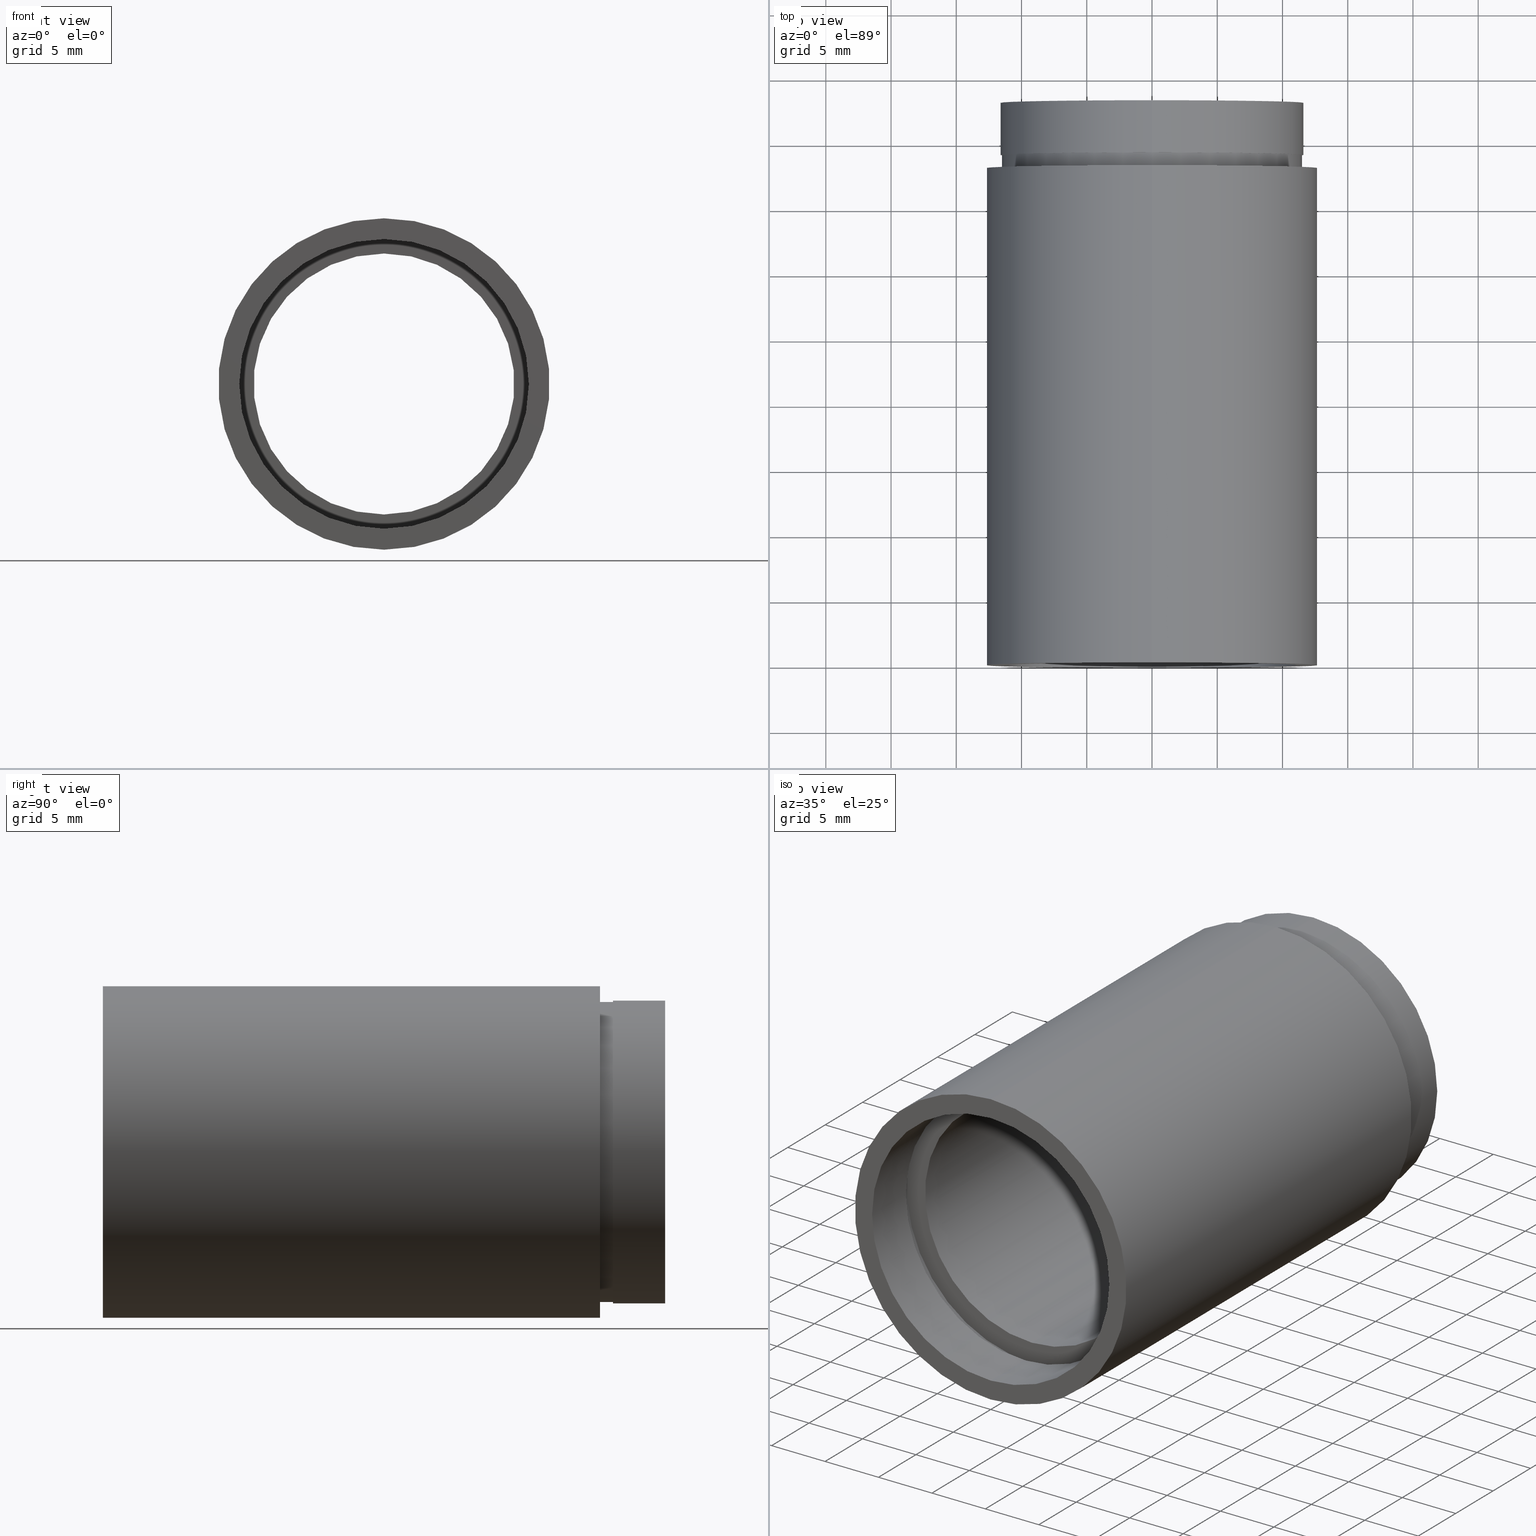
[diagram: canonical four-view strip — front | top / right | iso, engineering-drawing reading convention]
A machine part, canonical four-view strip (front | top / right | iso — engineering-drawing reading convention). The complete STEP part file that produces these views, byte-faithful:
ISO-10303-21;
HEADER;
FILE_DESCRIPTION (( 'STEP AP214' ),
    '1' );
FILE_NAME ('503057.STEP',
    '2019-09-09T01:53:00',
    ( '' ),
    ( '' ),
    'SwSTEP 2.0',
    'SolidWorks 2016',
    '' );
FILE_SCHEMA (( 'AUTOMOTIVE_DESIGN' ));
ENDSEC;

DATA;
#1 = FACE_OUTER_BOUND ( 'NONE', #345, .T. ) ;
#2 = VERTEX_POINT ( 'NONE', #413 ) ;
#3 = EDGE_CURVE ( 'NONE', #207, #395, #298, .T. ) ;
#4 = EDGE_LOOP ( 'NONE', ( #139, #241 ) ) ;
#5 = SURFACE_SIDE_STYLE ('',( #400 ) ) ;
#6 = FILL_AREA_STYLE ('',( #44 ) ) ;
#7 = VECTOR ( 'NONE', #422, 1000.000000000000000 ) ;
#8 = ORIENTED_EDGE ( 'NONE', *, *, #3, .F. ) ;
#9 = CARTESIAN_POINT ( 'NONE',  ( 0.0000000000000000000, 161.3761669434274500, 11.10000000000001700 ) ) ;
#10 = EDGE_CURVE ( 'NONE', #498, #480, #343, .T. ) ;
#11 = DIRECTION ( 'NONE',  ( -0.0000000000000000000, 1.000000000000000000, -0.0000000000000000000 ) ) ;
#12 = LINE ( 'NONE', #9, #136 ) ;
#13 = ADVANCED_FACE ( 'NONE', ( #506 ), #333, .F. ) ;
#14 = CARTESIAN_POINT ( 'NONE',  ( 0.0000000000000000000, 4.499999999999976000, 11.10000000000001700 ) ) ;
#15 = EDGE_LOOP ( 'NONE', ( #289, #540 ) ) ;
#16 = ORIENTED_EDGE ( 'NONE', *, *, #10, .T. ) ;
#17 = CARTESIAN_POINT ( 'NONE',  ( 0.0000000000000000000, 43.09999999999998700, 10.00000000000002000 ) ) ;
#18 = PRESENTATION_LAYER_ASSIGNMENT (  '', '', ( #76 ) ) ;
#19 = DIRECTION ( 'NONE',  ( 0.0000000000000000000, 0.0000000000000000000, 1.000000000000000000 ) ) ;
#20 = CARTESIAN_POINT ( 'NONE',  ( 0.0000000000000000000, -2.775557561562891400E-014, 0.0000000000000000000 ) ) ;
#21 = CARTESIAN_POINT ( 'NONE',  ( 0.0000000000000000000, 38.09999999999999400, 11.50000000000001600 ) ) ;
#22 = EDGE_CURVE ( 'NONE', #274, #267, #349, .T. ) ;
#23 = DIRECTION ( 'NONE',  ( 0.0000000000000000000, 0.0000000000000000000, 1.000000000000000000 ) ) ;
#24 = SHAPE_DEFINITION_REPRESENTATION ( #577, #414 ) ;
#25 = FILL_AREA_STYLE_COLOUR ( '', #184 ) ;
#26 = FACE_OUTER_BOUND ( 'NONE', #523, .T. ) ;
#27 = LINE ( 'NONE', #227, #7 ) ;
#28 = DIRECTION ( 'NONE',  ( -0.0000000000000000000, 1.000000000000000000, -0.0000000000000000000 ) ) ;
#29 = MECHANICAL_DESIGN_GEOMETRIC_PRESENTATION_REPRESENTATION (  '', ( #254 ), #89 ) ;
#30 =( NAMED_UNIT ( * ) PLANE_ANGLE_UNIT ( ) SI_UNIT ( $, .RADIAN. ) );
#31 = FACE_BOUND ( 'NONE', #517, .T. ) ;
#32 = EDGE_CURVE ( 'NONE', #186, #395, #579, .T. ) ;
#33 = DIRECTION ( 'NONE',  ( -0.0000000000000000000, 1.000000000000000000, -0.0000000000000000000 ) ) ;
#34 = ORIENTED_EDGE ( 'NONE', *, *, #399, .F. ) ;
#35 = ORIENTED_EDGE ( 'NONE', *, *, #582, .F. ) ;
#36 = PLANE ( 'NONE',  #195 ) ;
#37 = EDGE_CURVE ( 'NONE', #185, #299, #305, .T. ) ;
#38 = CARTESIAN_POINT ( 'NONE',  ( 0.0000000000000000000, -2.775557561562891400E-014, 11.10000000000001700 ) ) ;
#39 = DIRECTION ( 'NONE',  ( 0.0000000000000000000, 0.0000000000000000000, 1.000000000000000000 ) ) ;
#40 = FILL_AREA_STYLE ('',( #92 ) ) ;
#41 = PRESENTATION_STYLE_ASSIGNMENT (( #211 ) ) ;
#42 = EDGE_CURVE ( 'NONE', #274, #580, #325, .T. ) ;
#43 = ORIENTED_EDGE ( 'NONE', *, *, #304, .F. ) ;
#44 = FILL_AREA_STYLE_COLOUR ( '', #104 ) ;
#45 = EDGE_CURVE ( 'NONE', #433, #480, #272, .T. ) ;
#46 = UNCERTAINTY_MEASURE_WITH_UNIT (LENGTH_MEASURE( 1.000000000000000100E-005 ), #171, 'distance_accuracy_value', 'NONE');
#47 = VECTOR ( 'NONE', #213, 1000.000000000000000 ) ;
#48 = ORIENTED_EDGE ( 'NONE', *, *, #371, .T. ) ;
#49 = EDGE_LOOP ( 'NONE', ( #163, #147, #464, #623 ) ) ;
#50 = CARTESIAN_POINT ( 'NONE',  ( 0.0000000000000000000, -2.775557561562891400E-014, 0.0000000000000000000 ) ) ;
#51 = AXIS2_PLACEMENT_3D ( 'NONE', #275, #503, #456 ) ;
#52 = FACE_OUTER_BOUND ( 'NONE', #215, .T. ) ;
#53 = FACE_OUTER_BOUND ( 'NONE', #292, .T. ) ;
#54 = CARTESIAN_POINT ( 'NONE',  ( 0.0000000000000000000, 39.09999999999999400, 0.0000000000000000000 ) ) ;
#55 = EDGE_CURVE ( 'NONE', #580, #274, #453, .T. ) ;
#56 = ORIENTED_EDGE ( 'NONE', *, *, #105, .T. ) ;
#57 =( NAMED_UNIT ( * ) PLANE_ANGLE_UNIT ( ) SI_UNIT ( $, .RADIAN. ) );
#58 = CARTESIAN_POINT ( 'NONE',  ( 1.224646799147355400E-015, 161.3761669434274500, -10.00000000000002000 ) ) ;
#59 = AXIS2_PLACEMENT_3D ( 'NONE', #120, #310, #537 ) ;
#60 = PLANE ( 'NONE',  #336 ) ;
#61 = COLOUR_RGB ( '',1.000000000000000000, 1.000000000000000000, 1.000000000000000000 ) ;
#62 = EDGE_LOOP ( 'NONE', ( #455, #378 ) ) ;
#63 = ORIENTED_EDGE ( 'NONE', *, *, #42, .F. ) ;
#64 = AXIS2_PLACEMENT_3D ( 'NONE', #474, #189, #470 ) ;
#65 = ADVANCED_FACE ( 'NONE', ( #483 ), #613, .T. ) ;
#66 = EDGE_CURVE ( 'NONE', #185, #621, #198, .T. ) ;
#67 = ADVANCED_FACE ( 'NONE', ( #603 ), #174, .T. ) ;
#68 = FILL_AREA_STYLE ('',( #448 ) ) ;
#69 = DIRECTION ( 'NONE',  ( -0.0000000000000000000, 1.000000000000000000, -0.0000000000000000000 ) ) ;
#70 = CIRCLE ( 'NONE', #209, 11.10000000000001700 ) ;
#71 = SURFACE_STYLE_USAGE ( .BOTH. , #599 ) ;
#72 = CIRCLE ( 'NONE', #465, 11.70000000000001900 ) ;
#73 = EDGE_LOOP ( 'NONE', ( #63, #225, #56, #435 ) ) ;
#74 = EDGE_CURVE ( 'NONE', #164, #2, #472, .T. ) ;
#75 = DIRECTION ( 'NONE',  ( -0.0000000000000000000, 1.000000000000000000, 0.0000000000000000000 ) ) ;
#76 = STYLED_ITEM ( 'NONE', ( #251 ), #262 ) ;
#77 = CARTESIAN_POINT ( 'NONE',  ( 1.555301434917141000E-015, 161.3761669434274500, -12.70000000000002100 ) ) ;
#78 = DIRECTION ( 'NONE',  ( -0.0000000000000000000, 1.000000000000000000, -0.0000000000000000000 ) ) ;
#79 = AXIS2_PLACEMENT_3D ( 'NONE', #283, #418, #468 ) ;
#80 =( NAMED_UNIT ( * ) PLANE_ANGLE_UNIT ( ) SI_UNIT ( $, .RADIAN. ) );
#81 = CARTESIAN_POINT ( 'NONE',  ( 0.0000000000000000000, 4.499999999999976000, 0.0000000000000000000 ) ) ;
#82 = ORIENTED_EDGE ( 'NONE', *, *, #332, .T. ) ;
#83 = DIRECTION ( 'NONE',  ( -0.0000000000000000000, 1.000000000000000000, -0.0000000000000000000 ) ) ;
#84 = CLOSED_SHELL ( 'NONE', ( #155, #13, #542, #67, #502, #583, #533, #65, #354, #165, #110, #262, #118, #158, #589, #220, #396, #170 ) ) ;
#85 = DIRECTION ( 'NONE',  ( -0.0000000000000000000, 1.000000000000000000, 0.0000000000000000000 ) ) ;
#86 = CARTESIAN_POINT ( 'NONE',  ( 0.0000000000000000000, 5.499999999999976900, 0.0000000000000000000 ) ) ;
#87 = DIRECTION ( 'NONE',  ( -0.0000000000000000000, 1.000000000000000000, -0.0000000000000000000 ) ) ;
#88 = CIRCLE ( 'NONE', #576, 11.50000000000001600 ) ;
#89 =( GEOMETRIC_REPRESENTATION_CONTEXT ( 3 ) GLOBAL_UNCERTAINTY_ASSIGNED_CONTEXT ( ( #46 ) ) GLOBAL_UNIT_ASSIGNED_CONTEXT ( ( #171, #80, #123 ) ) REPRESENTATION_CONTEXT ( 'NONE', 'WORKASPACE' ) );
#90 = UNCERTAINTY_MEASURE_WITH_UNIT (LENGTH_MEASURE( 1.000000000000000100E-005 ), #284, 'distance_accuracy_value', 'NONE');
#91 = PRODUCT_CONTEXT ( 'NONE', #142, 'mechanical' ) ;
#92 = FILL_AREA_STYLE_COLOUR ( '', #367 ) ;
#93 = VECTOR ( 'NONE', #129, 1000.000000000000000 ) ;
#94 =( NAMED_UNIT ( * ) SI_UNIT ( $, .STERADIAN. ) SOLID_ANGLE_UNIT ( ) );
#95 = MECHANICAL_DESIGN_GEOMETRIC_PRESENTATION_REPRESENTATION (  '', ( #361 ), #125 ) ;
#96 = SURFACE_SIDE_STYLE ('',( #137 ) ) ;
#97 = AXIS2_PLACEMENT_3D ( 'NONE', #534, #541, #303 ) ;
#98 = ORIENTED_EDGE ( 'NONE', *, *, #582, .T. ) ;
#99 = ORIENTED_EDGE ( 'NONE', *, *, #102, .F. ) ;
#100 = ORIENTED_EDGE ( 'NONE', *, *, #102, .T. ) ;
#101 = UNCERTAINTY_MEASURE_WITH_UNIT (LENGTH_MEASURE( 1.000000000000000100E-005 ), #436, 'distance_accuracy_value', 'NONE');
#102 = EDGE_CURVE ( 'NONE', #552, #433, #206, .T. ) ;
#103 = DIRECTION ( 'NONE',  ( -0.0000000000000000000, 1.000000000000000000, -0.0000000000000000000 ) ) ;
#104 = COLOUR_RGB ( '',1.000000000000000000, 1.000000000000000000, 1.000000000000000000 ) ;
#105 = EDGE_CURVE ( 'NONE', #267, #484, #223, .T. ) ;
#106 = ORIENTED_EDGE ( 'NONE', *, *, #525, .F. ) ;
#107 = DIRECTION ( 'NONE',  ( 0.0000000000000000000, 0.0000000000000000000, 1.000000000000000000 ) ) ;
#108 = DIRECTION ( 'NONE',  ( 0.0000000000000000000, 0.0000000000000000000, 1.000000000000000000 ) ) ;
#109 = AXIS2_PLACEMENT_3D ( 'NONE', #475, #404, #217 ) ;
#110 = ADVANCED_FACE ( 'NONE', ( #440, #214 ), #36, .F. ) ;
#111 = DIRECTION ( 'NONE',  ( -0.0000000000000000000, 1.000000000000000000, -0.0000000000000000000 ) ) ;
#112 = PRESENTATION_STYLE_ASSIGNMENT (( #344 ) ) ;
#113 = PRESENTATION_LAYER_ASSIGNMENT (  '', '', ( #572 ) ) ;
#114 = EDGE_LOOP ( 'NONE', ( #35, #388, #490, #34 ) ) ;
#115 = VERTEX_POINT ( 'NONE', #21 ) ;
#116 = DIRECTION ( 'NONE',  ( 0.0000000000000000000, -0.0000000000000000000, -1.000000000000000000 ) ) ;
#117 = LINE ( 'NONE', #58, #565 ) ;
#118 = ADVANCED_FACE ( 'NONE', ( #191, #53 ), #233, .F. ) ;
#119 = ORIENTED_EDGE ( 'NONE', *, *, #332, .F. ) ;
#120 = CARTESIAN_POINT ( 'NONE',  ( 0.0000000000000000000, 43.09999999999998700, 0.0000000000000000000 ) ) ;
#121 = AXIS2_PLACEMENT_3D ( 'NONE', #369, #270, #23 ) ;
#122 = SURFACE_STYLE_USAGE ( .BOTH. , #501 ) ;
#123 =( NAMED_UNIT ( * ) SI_UNIT ( $, .STERADIAN. ) SOLID_ANGLE_UNIT ( ) );
#124 = CARTESIAN_POINT ( 'NONE',  ( 0.0000000000000000000, -2.775557561562891400E-014, 0.0000000000000000000 ) ) ;
#125 =( GEOMETRIC_REPRESENTATION_CONTEXT ( 3 ) GLOBAL_UNCERTAINTY_ASSIGNED_CONTEXT ( ( #218 ) ) GLOBAL_UNIT_ASSIGNED_CONTEXT ( ( #228, #30, #598 ) ) REPRESENTATION_CONTEXT ( 'NONE', 'WORKASPACE' ) );
#126 = DIRECTION ( 'NONE',  ( 0.0000000000000000000, 0.0000000000000000000, 1.000000000000000000 ) ) ;
#127 = DIRECTION ( 'NONE',  ( 0.0000000000000000000, 0.0000000000000000000, 1.000000000000000000 ) ) ;
#128 = CARTESIAN_POINT ( 'NONE',  ( 1.408343819019458100E-015, 39.09999999999999400, -11.50000000000001600 ) ) ;
#129 = DIRECTION ( 'NONE',  ( -0.0000000000000000000, 1.000000000000000000, -0.0000000000000000000 ) ) ;
#130 = ORIENTED_EDGE ( 'NONE', *, *, #624, .T. ) ;
#131 = AXIS2_PLACEMENT_3D ( 'NONE', #606, #28, #177 ) ;
#132 = DIRECTION ( 'NONE',  ( -0.0000000000000000000, 1.000000000000000000, -0.0000000000000000000 ) ) ;
#133 = FILL_AREA_STYLE_COLOUR ( '', #514 ) ;
#134 = EDGE_CURVE ( 'NONE', #299, #449, #315, .T. ) ;
#135 = DIRECTION ( 'NONE',  ( 0.0000000000000000000, 0.0000000000000000000, 1.000000000000000000 ) ) ;
#136 = VECTOR ( 'NONE', #161, 1000.000000000000000 ) ;
#137 = SURFACE_STYLE_FILL_AREA ( #6 ) ;
#138 = UNCERTAINTY_MEASURE_WITH_UNIT (LENGTH_MEASURE( 1.000000000000000100E-005 ), #500, 'distance_accuracy_value', 'NONE');
#139 = ORIENTED_EDGE ( 'NONE', *, *, #438, .T. ) ;
#140 = DIRECTION ( 'NONE',  ( -0.0000000000000000000, 1.000000000000000000, -0.0000000000000000000 ) ) ;
#141 = AXIS2_PLACEMENT_3D ( 'NONE', #173, #69, #276 ) ;
#142 = APPLICATION_CONTEXT ( 'automotive_design' ) ;
#143 =( NAMED_UNIT ( * ) SI_UNIT ( $, .STERADIAN. ) SOLID_ANGLE_UNIT ( ) );
#144 = EDGE_CURVE ( 'NONE', #115, #586, #27, .T. ) ;
#145 = PRESENTATION_LAYER_ASSIGNMENT (  '', '', ( #476 ) ) ;
#146 = FACE_OUTER_BOUND ( 'NONE', #370, .T. ) ;
#147 = ORIENTED_EDGE ( 'NONE', *, *, #438, .F. ) ;
#148 = EDGE_CURVE ( 'NONE', #484, #267, #72, .T. ) ;
#149 = ORIENTED_EDGE ( 'NONE', *, *, #42, .T. ) ;
#150 = ORIENTED_EDGE ( 'NONE', *, *, #616, .T. ) ;
#151 = DIRECTION ( 'NONE',  ( 0.0000000000000000000, 0.0000000000000000000, 1.000000000000000000 ) ) ;
#152 =( NAMED_UNIT ( * ) PLANE_ANGLE_UNIT ( ) SI_UNIT ( $, .RADIAN. ) );
#153 = AXIS2_PLACEMENT_3D ( 'NONE', #405, #224, #363 ) ;
#154 = VECTOR ( 'NONE', #554, 1000.000000000000000 ) ;
#155 = ADVANCED_FACE ( 'NONE', ( #550 ), #539, .F. ) ;
#156 = ORIENTED_EDGE ( 'NONE', *, *, #22, .F. ) ;
#157 = CARTESIAN_POINT ( 'NONE',  ( 0.0000000000000000000, 161.3761669434274500, 0.0000000000000000000 ) ) ;
#158 = ADVANCED_FACE ( 'NONE', ( #382 ), #280, .F. ) ;
#159 = CIRCLE ( 'NONE', #232, 12.70000000000002100 ) ;
#160 = SURFACE_STYLE_FILL_AREA ( #238 ) ;
#161 = DIRECTION ( 'NONE',  ( -0.0000000000000000000, 1.000000000000000000, -0.0000000000000000000 ) ) ;
#162 = EDGE_CURVE ( 'NONE', #393, #207, #620, .T. ) ;
#163 = ORIENTED_EDGE ( 'NONE', *, *, #424, .F. ) ;
#164 = VERTEX_POINT ( 'NONE', #38 ) ;
#165 = ADVANCED_FACE ( 'NONE', ( #26 ), #611, .T. ) ;
#166 = CARTESIAN_POINT ( 'NONE',  ( 0.0000000000000000000, 5.499999999999976900, 0.0000000000000000000 ) ) ;
#167 = EDGE_CURVE ( 'NONE', #586, #587, #258, .T. ) ;
#168 = DIRECTION ( 'NONE',  ( -0.0000000000000000000, 1.000000000000000000, -0.0000000000000000000 ) ) ;
#169 = CARTESIAN_POINT ( 'NONE',  ( 0.0000000000000000000, 161.3761669434274500, 11.60000000000001400 ) ) ;
#170 = ADVANCED_FACE ( 'NONE', ( #601 ), #375, .F. ) ;
#171 =( LENGTH_UNIT ( ) NAMED_UNIT ( * ) SI_UNIT ( .MILLI., .METRE. ) );
#172 = LINE ( 'NONE', #571, #385 ) ;
#173 = CARTESIAN_POINT ( 'NONE',  ( 0.0000000000000000000, 38.09999999999999400, 0.0000000000000000000 ) ) ;
#174 = CYLINDRICAL_SURFACE ( 'NONE', #153, 11.60000000000001400 ) ;
#175 = EDGE_CURVE ( 'NONE', #299, #185, #482, .T. ) ;
#176 = VERTEX_POINT ( 'NONE', #300 ) ;
#177 = DIRECTION ( 'NONE',  ( 0.0000000000000000000, 0.0000000000000000000, 1.000000000000000000 ) ) ;
#178 = CARTESIAN_POINT ( 'NONE',  ( 0.0000000000000000000, 43.09999999999998700, 0.0000000000000000000 ) ) ;
#179 = CARTESIAN_POINT ( 'NONE',  ( 1.359357947053564100E-015, 4.499999999999976000, -11.10000000000001700 ) ) ;
#180 = AXIS2_PLACEMENT_3D ( 'NONE', #178, #600, #596 ) ;
#181 = DIRECTION ( 'NONE',  ( -0.0000000000000000000, 1.000000000000000000, -0.0000000000000000000 ) ) ;
#182 = CYLINDRICAL_SURFACE ( 'NONE', #481, 11.60000000000001400 ) ;
#183 =( NAMED_UNIT ( * ) PLANE_ANGLE_UNIT ( ) SI_UNIT ( $, .RADIAN. ) );
#184 = COLOUR_RGB ( '',1.000000000000000000, 1.000000000000000000, 1.000000000000000000 ) ;
#185 = VERTEX_POINT ( 'NONE', #578 ) ;
#186 = VERTEX_POINT ( 'NONE', #335 ) ;
#187 = DIRECTION ( 'NONE',  ( -0.0000000000000000000, 1.000000000000000000, -0.0000000000000000000 ) ) ;
#188 = STYLED_ITEM ( 'NONE', ( #469 ), #414 ) ;
#189 = DIRECTION ( 'NONE',  ( 0.0000000000000000000, -1.000000000000000000, 0.0000000000000000000 ) ) ;
#190 = PRESENTATION_STYLE_ASSIGNMENT (( #329 ) ) ;
#191 = FACE_BOUND ( 'NONE', #402, .T. ) ;
#192 =( NAMED_UNIT ( * ) SI_UNIT ( $, .STERADIAN. ) SOLID_ANGLE_UNIT ( ) );
#193 = ORIENTED_EDGE ( 'NONE', *, *, #624, .F. ) ;
#194 = DIRECTION ( 'NONE',  ( 0.0000000000000000000, 0.0000000000000000000, 1.000000000000000000 ) ) ;
#195 = AXIS2_PLACEMENT_3D ( 'NONE', #286, #85, #376 ) ;
#196 = AXIS2_PLACEMENT_3D ( 'NONE', #157, #11, #352 ) ;
#197 = VECTOR ( 'NONE', #355, 1000.000000000000000 ) ;
#198 = LINE ( 'NONE', #169, #594 ) ;
#199 = EDGE_LOOP ( 'NONE', ( #604, #193 ) ) ;
#200 = ORIENTED_EDGE ( 'NONE', *, *, #144, .T. ) ;
#201 =( GEOMETRIC_REPRESENTATION_CONTEXT ( 3 ) GLOBAL_UNCERTAINTY_ASSIGNED_CONTEXT ( ( #302 ) ) GLOBAL_UNIT_ASSIGNED_CONTEXT ( ( #428, #183, #279 ) ) REPRESENTATION_CONTEXT ( 'NONE', 'WORKASPACE' ) );
#202 = DIRECTION ( 'NONE',  ( -0.0000000000000000000, 1.000000000000000000, -0.0000000000000000000 ) ) ;
#203 = AXIS2_PLACEMENT_3D ( 'NONE', #558, #140, #135 ) ;
#204 = FACE_OUTER_BOUND ( 'NONE', #316, .T. ) ;
#205 = CYLINDRICAL_SURFACE ( 'NONE', #265, 11.70000000000001900 ) ;
#206 = LINE ( 'NONE', #269, #154 ) ;
#207 = VERTEX_POINT ( 'NONE', #295 ) ;
#208 =( LENGTH_UNIT ( ) NAMED_UNIT ( * ) SI_UNIT ( .MILLI., .METRE. ) );
#209 = AXIS2_PLACEMENT_3D ( 'NONE', #20, #362, #323 ) ;
#210 = SURFACE_SIDE_STYLE ('',( #425 ) ) ;
#211 = SURFACE_STYLE_USAGE ( .BOTH. , #210 ) ;
#212 = AXIS2_PLACEMENT_3D ( 'NONE', #397, #308, #273 ) ;
#213 = DIRECTION ( 'NONE',  ( -0.0000000000000000000, 1.000000000000000000, -0.0000000000000000000 ) ) ;
#214 = FACE_BOUND ( 'NONE', #62, .T. ) ;
#215 = EDGE_LOOP ( 'NONE', ( #527, #16, #409, #99 ) ) ;
#216 = EDGE_LOOP ( 'NONE', ( #491, #384, #327, #8 ) ) ;
#217 = DIRECTION ( 'NONE',  ( 0.0000000000000000000, -0.0000000000000000000, -1.000000000000000000 ) ) ;
#218 = UNCERTAINTY_MEASURE_WITH_UNIT (LENGTH_MEASURE( 1.000000000000000100E-005 ), #228, 'distance_accuracy_value', 'NONE');
#219 = DIRECTION ( 'NONE',  ( -0.0000000000000000000, 1.000000000000000000, -0.0000000000000000000 ) ) ;
#220 = ADVANCED_FACE ( 'NONE', ( #495 ), #205, .F. ) ;
#221 = CARTESIAN_POINT ( 'NONE',  ( 11.10000000000001700, -1.580543700394483700E-014, 0.0000000000000000000 ) ) ;
#222 = MECHANICAL_DESIGN_GEOMETRIC_PRESENTATION_REPRESENTATION (  '', ( #524 ), #556 ) ;
#223 = CIRCLE ( 'NONE', #203, 11.70000000000001900 ) ;
#224 = DIRECTION ( 'NONE',  ( -0.0000000000000000000, 1.000000000000000000, -0.0000000000000000000 ) ) ;
#225 = ORIENTED_EDGE ( 'NONE', *, *, #22, .T. ) ;
#226 = CARTESIAN_POINT ( 'NONE',  ( 0.0000000000000000000, 161.3761669434274500, 11.70000000000001900 ) ) ;
#227 = CARTESIAN_POINT ( 'NONE',  ( 0.0000000000000000000, 161.3761669434274500, 11.50000000000001600 ) ) ;
#228 =( LENGTH_UNIT ( ) NAMED_UNIT ( * ) SI_UNIT ( .MILLI., .METRE. ) );
#229 = COLOUR_RGB ( '',1.000000000000000000, 1.000000000000000000, 1.000000000000000000 ) ;
#230 = PRESENTATION_STYLE_ASSIGNMENT (( #511 ) ) ;
#231 = ORIENTED_EDGE ( 'NONE', *, *, #134, .F. ) ;
#232 = AXIS2_PLACEMENT_3D ( 'NONE', #50, #103, #151 ) ;
#233 = PLANE ( 'NONE',  #64 ) ;
#234 = AXIS2_PLACEMENT_3D ( 'NONE', #555, #181, #510 ) ;
#235 = DIRECTION ( 'NONE',  ( -0.0000000000000000000, 1.000000000000000000, -0.0000000000000000000 ) ) ;
#236 = CYLINDRICAL_SURFACE ( 'NONE', #121, 12.70000000000002100 ) ;
#237 = LINE ( 'NONE', #306, #197 ) ;
#238 = FILL_AREA_STYLE ('',( #518 ) ) ;
#239 = VECTOR ( 'NONE', #461, 1000.000000000000000 ) ;
#240 = MECHANICAL_DESIGN_GEOMETRIC_PRESENTATION_REPRESENTATION (  '', ( #277 ), #590 ) ;
#241 = ORIENTED_EDGE ( 'NONE', *, *, #162, .T. ) ;
#242 = DIRECTION ( 'NONE',  ( 0.0000000000000000000, 0.0000000000000000000, 1.000000000000000000 ) ) ;
#243 = SURFACE_STYLE_USAGE ( .BOTH. , #96 ) ;
#244 = AXIS2_PLACEMENT_3D ( 'NONE', #528, #618, #108 ) ;
#245 = DIRECTION ( 'NONE',  ( -0.0000000000000000000, 1.000000000000000000, -0.0000000000000000000 ) ) ;
#246 = UNCERTAINTY_MEASURE_WITH_UNIT (LENGTH_MEASURE( 1.000000000000000100E-005 ), #208, 'distance_accuracy_value', 'NONE');
#247 = ORIENTED_EDGE ( 'NONE', *, *, #486, .F. ) ;
#248 = ORIENTED_EDGE ( 'NONE', *, *, #74, .F. ) ;
#249 = AXIS2_PLACEMENT_3D ( 'NONE', #81, #312, #416 ) ;
#250 = CYLINDRICAL_SURFACE ( 'NONE', #290, 10.00000000000002000 ) ;
#251 = PRESENTATION_STYLE_ASSIGNMENT (( #243 ) ) ;
#252 = ORIENTED_EDGE ( 'NONE', *, *, #371, .F. ) ;
#253 = FILL_AREA_STYLE ('',( #133 ) ) ;
#254 = STYLED_ITEM ( 'NONE', ( #337 ), #542 ) ;
#255 = CARTESIAN_POINT ( 'NONE',  ( 0.0000000000000000000, 39.09999999999999400, 0.0000000000000000000 ) ) ;
#256 = DIRECTION ( 'NONE',  ( 0.0000000000000000000, 0.0000000000000000000, 1.000000000000000000 ) ) ;
#257 =( GEOMETRIC_REPRESENTATION_CONTEXT ( 3 ) GLOBAL_UNCERTAINTY_ASSIGNED_CONTEXT ( ( #458 ) ) GLOBAL_UNIT_ASSIGNED_CONTEXT ( ( #426, #609, #143 ) ) REPRESENTATION_CONTEXT ( 'NONE', 'WORKASPACE' ) );
#258 = CIRCLE ( 'NONE', #318, 11.50000000000001600 ) ;
#259 = DIRECTION ( 'NONE',  ( -0.0000000000000000000, 1.000000000000000000, -0.0000000000000000000 ) ) ;
#260 = EDGE_LOOP ( 'NONE', ( #156, #559, #150, #434 ) ) ;
#261 = CARTESIAN_POINT ( 'NONE',  ( 0.0000000000000000000, 5.499999999999976900, 11.70000000000001900 ) ) ;
#262 = ADVANCED_FACE ( 'NONE', ( #146 ), #182, .T. ) ;
#263 = CARTESIAN_POINT ( 'NONE',  ( 0.0000000000000000000, 38.09999999999999400, 12.70000000000001900 ) ) ;
#264 = FACE_BOUND ( 'NONE', #360, .T. ) ;
#265 = AXIS2_PLACEMENT_3D ( 'NONE', #342, #485, #256 ) ;
#266 = EDGE_LOOP ( 'NONE', ( #420, #562 ) ) ;
#267 = VERTEX_POINT ( 'NONE', #581 ) ;
#268 = CARTESIAN_POINT ( 'NONE',  ( 0.0000000000000000000, 4.499999999999976000, 11.70000000000001900 ) ) ;
#269 = CARTESIAN_POINT ( 'NONE',  ( 0.0000000000000000000, 161.3761669434274500, 12.70000000000002100 ) ) ;
#270 = DIRECTION ( 'NONE',  ( -0.0000000000000000000, 1.000000000000000000, -0.0000000000000000000 ) ) ;
#271 = PRESENTATION_LAYER_ASSIGNMENT (  '', '', ( #188 ) ) ;
#272 = CIRCLE ( 'NONE', #141, 12.70000000000001900 ) ;
#273 = DIRECTION ( 'NONE',  ( 0.0000000000000000000, 0.0000000000000000000, 1.000000000000000000 ) ) ;
#274 = VERTEX_POINT ( 'NONE', #584 ) ;
#275 = CARTESIAN_POINT ( 'NONE',  ( 0.0000000000000000000, 43.10000000000000100, 0.0000000000000000000 ) ) ;
#276 = DIRECTION ( 'NONE',  ( 0.0000000000000000000, 0.0000000000000000000, 1.000000000000000000 ) ) ;
#277 = STYLED_ITEM ( 'NONE', ( #190 ), #158 ) ;
#278 = CARTESIAN_POINT ( 'NONE',  ( 0.0000000000000000000, 39.09999999999999400, 11.50000000000001600 ) ) ;
#279 =( NAMED_UNIT ( * ) SI_UNIT ( $, .STERADIAN. ) SOLID_ANGLE_UNIT ( ) );
#280 = CYLINDRICAL_SURFACE ( 'NONE', #346, 10.00000000000002000 ) ;
#281 = ORIENTED_EDGE ( 'NONE', *, *, #383, .F. ) ;
#282 = ORIENTED_EDGE ( 'NONE', *, *, #55, .T. ) ;
#283 = CARTESIAN_POINT ( 'NONE',  ( 0.0000000000000000000, 161.3761669434274500, 0.0000000000000000000 ) ) ;
#284 =( LENGTH_UNIT ( ) NAMED_UNIT ( * ) SI_UNIT ( .MILLI., .METRE. ) );
#285 = SURFACE_SIDE_STYLE ('',( #347 ) ) ;
#286 = CARTESIAN_POINT ( 'NONE',  ( 11.50000000000001600, 39.09999999999998700, 0.0000000000000000000 ) ) ;
#287 = APPLICATION_PROTOCOL_DEFINITION ( 'draft international standard', 'automotive_design', 1998, #142 ) ;
#288 = AXIS2_PLACEMENT_3D ( 'NONE', #86, #187, #515 ) ;
#289 = ORIENTED_EDGE ( 'NONE', *, *, #45, .T. ) ;
#290 = AXIS2_PLACEMENT_3D ( 'NONE', #509, #364, #549 ) ;
#291 = ORIENTED_EDGE ( 'NONE', *, *, #507, .F. ) ;
#292 = EDGE_LOOP ( 'NONE', ( #516, #573 ) ) ;
#293 =( GEOMETRIC_REPRESENTATION_CONTEXT ( 3 ) GLOBAL_UNCERTAINTY_ASSIGNED_CONTEXT ( ( #246 ) ) GLOBAL_UNIT_ASSIGNED_CONTEXT ( ( #208, #57, #531 ) ) REPRESENTATION_CONTEXT ( 'NONE', 'WORKASPACE' ) );
#294 = DIRECTION ( 'NONE',  ( -0.0000000000000000000, 1.000000000000000000, -0.0000000000000000000 ) ) ;
#295 = CARTESIAN_POINT ( 'NONE',  ( 0.0000000000000000000, 5.499999999999976900, 10.00000000000002000 ) ) ;
#296 = EDGE_CURVE ( 'NONE', #587, #586, #297, .T. ) ;
#297 = CIRCLE ( 'NONE', #544, 11.50000000000001600 ) ;
#298 = LINE ( 'NONE', #493, #47 ) ;
#299 = VERTEX_POINT ( 'NONE', #394 ) ;
#300 = CARTESIAN_POINT ( 'NONE',  ( 1.408343819019458100E-015, 38.09999999999999400, -11.50000000000001600 ) ) ;
#301 = DIRECTION ( 'NONE',  ( 0.0000000000000000000, 0.0000000000000000000, 1.000000000000000000 ) ) ;
#302 = UNCERTAINTY_MEASURE_WITH_UNIT (LENGTH_MEASURE( 1.000000000000000100E-005 ), #428, 'distance_accuracy_value', 'NONE');
#303 = DIRECTION ( 'NONE',  ( 0.0000000000000000000, 0.0000000000000000000, 1.000000000000000000 ) ) ;
#304 = EDGE_CURVE ( 'NONE', #2, #588, #172, .T. ) ;
#305 = CIRCLE ( 'NONE', #391, 11.60000000000001400 ) ;
#306 = CARTESIAN_POINT ( 'NONE',  ( 1.408343819019458100E-015, 161.3761669434274500, -11.50000000000001600 ) ) ;
#307 = ORIENTED_EDGE ( 'NONE', *, *, #74, .T. ) ;
#308 = DIRECTION ( 'NONE',  ( -0.0000000000000000000, 1.000000000000000000, -0.0000000000000000000 ) ) ;
#309 = EDGE_LOOP ( 'NONE', ( #595, #130, #100, #567 ) ) ;
#310 = DIRECTION ( 'NONE',  ( -0.0000000000000000000, 1.000000000000000000, -0.0000000000000000000 ) ) ;
#311 = DIRECTION ( 'NONE',  ( 0.0000000000000000000, 0.0000000000000000000, 1.000000000000000000 ) ) ;
#312 = DIRECTION ( 'NONE',  ( -0.0000000000000000000, 1.000000000000000000, -0.0000000000000000000 ) ) ;
#313 = FACE_OUTER_BOUND ( 'NONE', #15, .T. ) ;
#314 = AXIS2_PLACEMENT_3D ( 'NONE', #319, #39, #608 ) ;
#315 = LINE ( 'NONE', #334, #530 ) ;
#316 = EDGE_LOOP ( 'NONE', ( #282, #149 ) ) ;
#317 = DIRECTION ( 'NONE',  ( -0.0000000000000000000, 1.000000000000000000, 0.0000000000000000000 ) ) ;
#318 = AXIS2_PLACEMENT_3D ( 'NONE', #54, #202, #381 ) ;
#319 = CARTESIAN_POINT ( 'NONE',  ( 0.0000000000000000000, 0.0000000000000000000, 0.0000000000000000000 ) ) ;
#320 = CARTESIAN_POINT ( 'NONE',  ( 0.0000000000000000000, 39.09999999999999400, 0.0000000000000000000 ) ) ;
#321 = DIRECTION ( 'NONE',  ( 0.0000000000000000000, 0.0000000000000000000, 1.000000000000000000 ) ) ;
#322 = CARTESIAN_POINT ( 'NONE',  ( 0.0000000000000000000, 4.499999999999976000, 0.0000000000000000000 ) ) ;
#323 = DIRECTION ( 'NONE',  ( 0.0000000000000000000, 0.0000000000000000000, 1.000000000000000000 ) ) ;
#324 = MECHANICAL_DESIGN_GEOMETRIC_PRESENTATION_REPRESENTATION (  '', ( #188 ), #201 ) ;
#325 = CIRCLE ( 'NONE', #249, 11.70000000000001900 ) ;
#326 = CARTESIAN_POINT ( 'NONE',  ( 0.0000000000000000000, 161.3761669434274500, 0.0000000000000000000 ) ) ;
#327 = ORIENTED_EDGE ( 'NONE', *, *, #32, .T. ) ;
#328 = MECHANICAL_DESIGN_GEOMETRIC_PRESENTATION_REPRESENTATION (  '', ( #76 ), #293 ) ;
#329 = SURFACE_STYLE_USAGE ( .BOTH. , #373 ) ;
#330 =( NAMED_UNIT ( * ) PLANE_ANGLE_UNIT ( ) SI_UNIT ( $, .RADIAN. ) );
#331 = FACE_OUTER_BOUND ( 'NONE', #368, .T. ) ;
#332 = EDGE_CURVE ( 'NONE', #387, #588, #513, .T. ) ;
#333 = CYLINDRICAL_SURFACE ( 'NONE', #212, 11.70000000000001900 ) ;
#334 = CARTESIAN_POINT ( 'NONE',  ( 1.420590287010931300E-015, 161.3761669434274500, -11.60000000000001400 ) ) ;
#335 = CARTESIAN_POINT ( 'NONE',  ( 1.224646799147355400E-015, 43.09999999999998700, -10.00000000000002000 ) ) ;
#336 = AXIS2_PLACEMENT_3D ( 'NONE', #357, #492, #116 ) ;
#337 = PRESENTATION_STYLE_ASSIGNMENT (( #71 ) ) ;
#338 = SURFACE_STYLE_FILL_AREA ( #546 ) ;
#339 = EDGE_CURVE ( 'NONE', #552, #498, #159, .T. ) ;
#340 = ORIENTED_EDGE ( 'NONE', *, *, #175, .T. ) ;
#341 = ORIENTED_EDGE ( 'NONE', *, *, #66, .T. ) ;
#342 = CARTESIAN_POINT ( 'NONE',  ( 0.0000000000000000000, 161.3761669434274500, 0.0000000000000000000 ) ) ;
#343 = LINE ( 'NONE', #77, #239 ) ;
#344 = SURFACE_STYLE_USAGE ( .BOTH. , #5 ) ;
#345 = EDGE_LOOP ( 'NONE', ( #574, #48, #427, #614 ) ) ;
#346 = AXIS2_PLACEMENT_3D ( 'NONE', #326, #372, #615 ) ;
#347 = SURFACE_STYLE_FILL_AREA ( #564 ) ;
#348 = CARTESIAN_POINT ( 'NONE',  ( 1.224646799147355400E-015, 5.499999999999976900, -10.00000000000002000 ) ) ;
#349 = LINE ( 'NONE', #505, #93 ) ;
#350 = ORIENTED_EDGE ( 'NONE', *, *, #148, .F. ) ;
#351 = ORIENTED_EDGE ( 'NONE', *, *, #399, .T. ) ;
#352 = DIRECTION ( 'NONE',  ( 0.0000000000000000000, 0.0000000000000000000, 1.000000000000000000 ) ) ;
#353 = MECHANICAL_DESIGN_GEOMETRIC_PRESENTATION_REPRESENTATION (  '', ( #476 ), #568 ) ;
#354 = ADVANCED_FACE ( 'NONE', ( #264, #313 ), #488, .F. ) ;
#355 = DIRECTION ( 'NONE',  ( -0.0000000000000000000, 1.000000000000000000, -0.0000000000000000000 ) ) ;
#356 = CIRCLE ( 'NONE', #131, 11.10000000000001700 ) ;
#357 = CARTESIAN_POINT ( 'NONE',  ( 11.10000000000001700, 4.499999999999983100, 0.0000000000000000000 ) ) ;
#358 = PRESENTATION_STYLE_ASSIGNMENT (( #122 ) ) ;
#359 = CARTESIAN_POINT ( 'NONE',  ( 0.0000000000000000000, 161.3761669434274500, 0.0000000000000000000 ) ) ;
#360 = EDGE_LOOP ( 'NONE', ( #247, #281 ) ) ;
#361 = STYLED_ITEM ( 'NONE', ( #358 ), #67 ) ;
#362 = DIRECTION ( 'NONE',  ( -0.0000000000000000000, 1.000000000000000000, -0.0000000000000000000 ) ) ;
#363 = DIRECTION ( 'NONE',  ( 0.0000000000000000000, 0.0000000000000000000, 1.000000000000000000 ) ) ;
#364 = DIRECTION ( 'NONE',  ( -0.0000000000000000000, 1.000000000000000000, -0.0000000000000000000 ) ) ;
#365 = AXIS2_PLACEMENT_3D ( 'NONE', #417, #75, #126 ) ;
#366 = DIRECTION ( 'NONE',  ( 0.0000000000000000000, 0.0000000000000000000, 1.000000000000000000 ) ) ;
#367 = COLOUR_RGB ( '',1.000000000000000000, 1.000000000000000000, 1.000000000000000000 ) ;
#368 = EDGE_LOOP ( 'NONE', ( #350, #532 ) ) ;
#369 = CARTESIAN_POINT ( 'NONE',  ( 0.0000000000000000000, 161.3761669434274500, 0.0000000000000000000 ) ) ;
#370 = EDGE_LOOP ( 'NONE', ( #231, #340, #341, #106 ) ) ;
#371 = EDGE_CURVE ( 'NONE', #176, #587, #237, .T. ) ;
#372 = DIRECTION ( 'NONE',  ( -0.0000000000000000000, 1.000000000000000000, -0.0000000000000000000 ) ) ;
#373 = SURFACE_SIDE_STYLE ('',( #160 ) ) ;
#374 = SURFACE_STYLE_FILL_AREA ( #459 ) ;
#375 = CYLINDRICAL_SURFACE ( 'NONE', #489, 11.10000000000001700 ) ;
#376 = DIRECTION ( 'NONE',  ( 0.0000000000000000000, 0.0000000000000000000, 1.000000000000000000 ) ) ;
#377 = EDGE_LOOP ( 'NONE', ( #566, #473, #291, #508 ) ) ;
#378 = ORIENTED_EDGE ( 'NONE', *, *, #296, .T. ) ;
#379 = PRODUCT_DEFINITION ( 'δ֪', '', #407, #499 ) ;
#380 = APPLICATION_PROTOCOL_DEFINITION ( 'draft international standard', 'automotive_design', 1998, #617 ) ;
#381 = DIRECTION ( 'NONE',  ( 0.0000000000000000000, 0.0000000000000000000, 1.000000000000000000 ) ) ;
#382 = FACE_OUTER_BOUND ( 'NONE', #49, .T. ) ;
#383 = EDGE_CURVE ( 'NONE', #176, #115, #88, .T. ) ;
#384 = ORIENTED_EDGE ( 'NONE', *, *, #424, .T. ) ;
#385 = VECTOR ( 'NONE', #294, 1000.000000000000000 ) ;
#386 = AXIS2_PLACEMENT_3D ( 'NONE', #221, #317, #597 ) ;
#387 = VERTEX_POINT ( 'NONE', #14 ) ;
#388 = ORIENTED_EDGE ( 'NONE', *, *, #304, .T. ) ;
#389 = DIRECTION ( 'NONE',  ( 0.0000000000000000000, 0.0000000000000000000, 1.000000000000000000 ) ) ;
#390 = CARTESIAN_POINT ( 'NONE',  ( 0.0000000000000000000, 39.09999999999999400, 0.0000000000000000000 ) ) ;
#391 = AXIS2_PLACEMENT_3D ( 'NONE', #320, #452, #557 ) ;
#392 = DIRECTION ( 'NONE',  ( 0.0000000000000000000, 0.0000000000000000000, 1.000000000000000000 ) ) ;
#393 = VERTEX_POINT ( 'NONE', #348 ) ;
#394 = CARTESIAN_POINT ( 'NONE',  ( 1.420590287010931300E-015, 39.09999999999999400, -11.60000000000001400 ) ) ;
#395 = VERTEX_POINT ( 'NONE', #17 ) ;
#396 = ADVANCED_FACE ( 'NONE', ( #547, #204 ), #60, .F. ) ;
#397 = CARTESIAN_POINT ( 'NONE',  ( 0.0000000000000000000, 161.3761669434274500, 0.0000000000000000000 ) ) ;
#398 = CARTESIAN_POINT ( 'NONE',  ( 1.420590287010931300E-015, 43.10000000000000100, -11.60000000000001400 ) ) ;
#399 = EDGE_CURVE ( 'NONE', #164, #387, #12, .T. ) ;
#400 = SURFACE_STYLE_FILL_AREA ( #253 ) ;
#401 = ORIENTED_EDGE ( 'NONE', *, *, #520, .F. ) ;
#402 = EDGE_LOOP ( 'NONE', ( #447, #479 ) ) ;
#403 =( NAMED_UNIT ( * ) PLANE_ANGLE_UNIT ( ) SI_UNIT ( $, .RADIAN. ) );
#404 = DIRECTION ( 'NONE',  ( 0.0000000000000000000, -1.000000000000000000, 0.0000000000000000000 ) ) ;
#405 = CARTESIAN_POINT ( 'NONE',  ( 0.0000000000000000000, 161.3761669434274500, 0.0000000000000000000 ) ) ;
#406 = PLANE ( 'NONE',  #365 ) ;
#407 = PRODUCT_DEFINITION_FORMATION_WITH_SPECIFIED_SOURCE ( '�κ�', '', #430, .NOT_KNOWN. ) ;
#408 = CARTESIAN_POINT ( 'NONE',  ( 0.0000000000000000000, -2.775557561562891400E-014, 12.70000000000002100 ) ) ;
#409 = ORIENTED_EDGE ( 'NONE', *, *, #45, .F. ) ;
#410 = DIRECTION ( 'NONE',  ( -0.0000000000000000000, 1.000000000000000000, -0.0000000000000000000 ) ) ;
#411 = EDGE_CURVE ( 'NONE', #395, #186, #526, .T. ) ;
#412 =( NAMED_UNIT ( * ) PLANE_ANGLE_UNIT ( ) SI_UNIT ( $, .RADIAN. ) );
#413 = CARTESIAN_POINT ( 'NONE',  ( 1.359357947053564100E-015, -2.775557561562891400E-014, -11.10000000000001700 ) ) ;
#414 = ADVANCED_BREP_SHAPE_REPRESENTATION ( '503057', ( #432, #314 ), #421 ) ;
#415 = PLANE ( 'NONE',  #386 ) ;
#416 = DIRECTION ( 'NONE',  ( 0.0000000000000000000, 0.0000000000000000000, 1.000000000000000000 ) ) ;
#417 = CARTESIAN_POINT ( 'NONE',  ( 11.70000000000001900, 5.499999999999982200, 0.0000000000000000000 ) ) ;
#418 = DIRECTION ( 'NONE',  ( -0.0000000000000000000, 1.000000000000000000, -0.0000000000000000000 ) ) ;
#419 = COLOUR_RGB ( '',1.000000000000000000, 1.000000000000000000, 1.000000000000000000 ) ;
#420 = ORIENTED_EDGE ( 'NONE', *, *, #37, .F. ) ;
#421 =( GEOMETRIC_REPRESENTATION_CONTEXT ( 3 ) GLOBAL_UNCERTAINTY_ASSIGNED_CONTEXT ( ( #138 ) ) GLOBAL_UNIT_ASSIGNED_CONTEXT ( ( #500, #412, #192 ) ) REPRESENTATION_CONTEXT ( 'NONE', 'WORKASPACE' ) );
#422 = DIRECTION ( 'NONE',  ( -0.0000000000000000000, 1.000000000000000000, -0.0000000000000000000 ) ) ;
#423 = CARTESIAN_POINT ( 'NONE',  ( 0.0000000000000000000, 161.3761669434274500, 0.0000000000000000000 ) ) ;
#424 = EDGE_CURVE ( 'NONE', #393, #186, #117, .T. ) ;
#425 = SURFACE_STYLE_FILL_AREA ( #68 ) ;
#426 =( LENGTH_UNIT ( ) NAMED_UNIT ( * ) SI_UNIT ( .MILLI., .METRE. ) );
#427 = ORIENTED_EDGE ( 'NONE', *, *, #167, .F. ) ;
#428 =( LENGTH_UNIT ( ) NAMED_UNIT ( * ) SI_UNIT ( .MILLI., .METRE. ) );
#429 = AXIS2_PLACEMENT_3D ( 'NONE', #494, #219, #301 ) ;
#430 = PRODUCT ( '503057', '503057', '', ( #91 ) ) ;
#431 = AXIS2_PLACEMENT_3D ( 'NONE', #359, #132, #366 ) ;
#432 = MANIFOLD_SOLID_BREP ( '��ת1', #84 ) ;
#433 = VERTEX_POINT ( 'NONE', #263 ) ;
#434 = ORIENTED_EDGE ( 'NONE', *, *, #148, .T. ) ;
#435 = ORIENTED_EDGE ( 'NONE', *, *, #616, .F. ) ;
#436 =( LENGTH_UNIT ( ) NAMED_UNIT ( * ) SI_UNIT ( .MILLI., .METRE. ) );
#437 = FACE_BOUND ( 'NONE', #4, .T. ) ;
#438 = EDGE_CURVE ( 'NONE', #207, #393, #471, .T. ) ;
#439 = PRODUCT_RELATED_PRODUCT_CATEGORY ( 'part', '', ( #430 ) ) ;
#440 = FACE_OUTER_BOUND ( 'NONE', #266, .T. ) ;
#441 = ORIENTED_EDGE ( 'NONE', *, *, #383, .T. ) ;
#442 = CARTESIAN_POINT ( 'NONE',  ( 0.0000000000000000000, 161.3761669434274500, 0.0000000000000000000 ) ) ;
#443 = DIRECTION ( 'NONE',  ( 0.0000000000000000000, 0.0000000000000000000, 1.000000000000000000 ) ) ;
#444 = PRESENTATION_LAYER_ASSIGNMENT (  '', '', ( #361 ) ) ;
#445 = CARTESIAN_POINT ( 'NONE',  ( 1.555301434917140800E-015, 38.09999999999999400, -12.70000000000001900 ) ) ;
#446 = FACE_OUTER_BOUND ( 'NONE', #216, .T. ) ;
#447 = ORIENTED_EDGE ( 'NONE', *, *, #411, .F. ) ;
#448 = FILL_AREA_STYLE_COLOUR ( '', #229 ) ;
#449 = VERTEX_POINT ( 'NONE', #398 ) ;
#450 = CARTESIAN_POINT ( 'NONE',  ( 1.555301434917141000E-015, -2.775557561562891400E-014, -12.70000000000002100 ) ) ;
#451 = CIRCLE ( 'NONE', #429, 11.60000000000001400 ) ;
#452 = DIRECTION ( 'NONE',  ( -0.0000000000000000000, 1.000000000000000000, -0.0000000000000000000 ) ) ;
#453 = CIRCLE ( 'NONE', #548, 11.70000000000001900 ) ;
#454 = AXIS2_PLACEMENT_3D ( 'NONE', #124, #457, #127 ) ;
#455 = ORIENTED_EDGE ( 'NONE', *, *, #167, .T. ) ;
#456 = DIRECTION ( 'NONE',  ( 0.0000000000000000000, 0.0000000000000000000, 1.000000000000000000 ) ) ;
#457 = DIRECTION ( 'NONE',  ( -0.0000000000000000000, 1.000000000000000000, -0.0000000000000000000 ) ) ;
#458 = UNCERTAINTY_MEASURE_WITH_UNIT (LENGTH_MEASURE( 1.000000000000000100E-005 ), #426, 'distance_accuracy_value', 'NONE');
#459 = FILL_AREA_STYLE ('',( #466 ) ) ;
#460 = PRESENTATION_LAYER_ASSIGNMENT (  '', '', ( #254 ) ) ;
#461 = DIRECTION ( 'NONE',  ( -0.0000000000000000000, 1.000000000000000000, -0.0000000000000000000 ) ) ;
#462 = CIRCLE ( 'NONE', #51, 11.60000000000001400 ) ;
#463 = FILL_AREA_STYLE_COLOUR ( '', #619 ) ;
#464 = ORIENTED_EDGE ( 'NONE', *, *, #3, .T. ) ;
#465 = AXIS2_PLACEMENT_3D ( 'NONE', #467, #33, #194 ) ;
#466 = FILL_AREA_STYLE_COLOUR ( '', #61 ) ;
#467 = CARTESIAN_POINT ( 'NONE',  ( 0.0000000000000000000, 5.499999999999976900, 0.0000000000000000000 ) ) ;
#468 = DIRECTION ( 'NONE',  ( 0.0000000000000000000, 0.0000000000000000000, 1.000000000000000000 ) ) ;
#469 = PRESENTATION_STYLE_ASSIGNMENT (( #569 ) ) ;
#470 = DIRECTION ( 'NONE',  ( 0.0000000000000000000, -0.0000000000000000000, -1.000000000000000000 ) ) ;
#471 = CIRCLE ( 'NONE', #622, 10.00000000000002000 ) ;
#472 = CIRCLE ( 'NONE', #454, 11.10000000000001700 ) ;
#473 = ORIENTED_EDGE ( 'NONE', *, *, #134, .T. ) ;
#474 = CARTESIAN_POINT ( 'NONE',  ( 11.60000000000001400, 43.09999999999998700, 0.0000000000000000000 ) ) ;
#475 = CARTESIAN_POINT ( 'NONE',  ( 12.70000000000001900, 38.09999999999998700, 0.0000000000000000000 ) ) ;
#476 = STYLED_ITEM ( 'NONE', ( #112 ), #170 ) ;
#477 = CIRCLE ( 'NONE', #234, 12.70000000000002100 ) ;
#478 = CIRCLE ( 'NONE', #585, 12.70000000000001900 ) ;
#479 = ORIENTED_EDGE ( 'NONE', *, *, #32, .F. ) ;
#480 = VERTEX_POINT ( 'NONE', #445 ) ;
#481 = AXIS2_PLACEMENT_3D ( 'NONE', #442, #245, #389 ) ;
#482 = CIRCLE ( 'NONE', #529, 11.60000000000001400 ) ;
#483 = FACE_OUTER_BOUND ( 'NONE', #309, .T. ) ;
#484 = VERTEX_POINT ( 'NONE', #261 ) ;
#485 = DIRECTION ( 'NONE',  ( -0.0000000000000000000, 1.000000000000000000, -0.0000000000000000000 ) ) ;
#486 = EDGE_CURVE ( 'NONE', #115, #176, #593, .T. ) ;
#487 = DIRECTION ( 'NONE',  ( -0.0000000000000000000, 1.000000000000000000, -0.0000000000000000000 ) ) ;
#488 = PLANE ( 'NONE',  #109 ) ;
#489 = AXIS2_PLACEMENT_3D ( 'NONE', #563, #235, #392 ) ;
#490 = ORIENTED_EDGE ( 'NONE', *, *, #520, .T. ) ;
#491 = ORIENTED_EDGE ( 'NONE', *, *, #162, .F. ) ;
#492 = DIRECTION ( 'NONE',  ( 0.0000000000000000000, -1.000000000000000000, 0.0000000000000000000 ) ) ;
#493 = CARTESIAN_POINT ( 'NONE',  ( 0.0000000000000000000, 161.3761669434274500, 10.00000000000002000 ) ) ;
#494 = CARTESIAN_POINT ( 'NONE',  ( 0.0000000000000000000, 43.10000000000000100, 0.0000000000000000000 ) ) ;
#495 = FACE_OUTER_BOUND ( 'NONE', #260, .T. ) ;
#496 = DIRECTION ( 'NONE',  ( 0.0000000000000000000, 0.0000000000000000000, 1.000000000000000000 ) ) ;
#497 = EDGE_LOOP ( 'NONE', ( #43, #248, #351, #82 ) ) ;
#498 = VERTEX_POINT ( 'NONE', #450 ) ;
#499 = PRODUCT_DEFINITION_CONTEXT ( 'detailed design', #617, 'design' ) ;
#500 =( LENGTH_UNIT ( ) NAMED_UNIT ( * ) SI_UNIT ( .MILLI., .METRE. ) );
#501 = SURFACE_SIDE_STYLE ('',( #338 ) ) ;
#502 = ADVANCED_FACE ( 'NONE', ( #1 ), #538, .T. ) ;
#503 = DIRECTION ( 'NONE',  ( -0.0000000000000000000, 1.000000000000000000, -0.0000000000000000000 ) ) ;
#504 = AXIS2_PLACEMENT_3D ( 'NONE', #423, #519, #242 ) ;
#505 = CARTESIAN_POINT ( 'NONE',  ( 1.432836755002405700E-015, 161.3761669434274500, -11.70000000000001900 ) ) ;
#506 = FACE_OUTER_BOUND ( 'NONE', #73, .T. ) ;
#507 = EDGE_CURVE ( 'NONE', #621, #449, #451, .T. ) ;
#508 = ORIENTED_EDGE ( 'NONE', *, *, #66, .F. ) ;
#509 = CARTESIAN_POINT ( 'NONE',  ( 0.0000000000000000000, 161.3761669434274500, 0.0000000000000000000 ) ) ;
#510 = DIRECTION ( 'NONE',  ( 0.0000000000000000000, 0.0000000000000000000, 1.000000000000000000 ) ) ;
#511 = SURFACE_STYLE_USAGE ( .BOTH. , #607 ) ;
#512 = VECTOR ( 'NONE', #78, 1000.000000000000000 ) ;
#513 = CIRCLE ( 'NONE', #244, 11.10000000000001700 ) ;
#514 = COLOUR_RGB ( '',1.000000000000000000, 1.000000000000000000, 1.000000000000000000 ) ;
#515 = DIRECTION ( 'NONE',  ( 0.0000000000000000000, 0.0000000000000000000, 1.000000000000000000 ) ) ;
#516 = ORIENTED_EDGE ( 'NONE', *, *, #507, .T. ) ;
#517 = EDGE_LOOP ( 'NONE', ( #307, #98 ) ) ;
#518 = FILL_AREA_STYLE_COLOUR ( '', #419 ) ;
#519 = DIRECTION ( 'NONE',  ( -0.0000000000000000000, 1.000000000000000000, -0.0000000000000000000 ) ) ;
#520 = EDGE_CURVE ( 'NONE', #588, #387, #356, .T. ) ;
#521 = LINE ( 'NONE', #226, #512 ) ;
#522 = SURFACE_STYLE_FILL_AREA ( #40 ) ;
#523 = EDGE_LOOP ( 'NONE', ( #252, #441, #200, #605 ) ) ;
#524 = STYLED_ITEM ( 'NONE', ( #41 ), #432 ) ;
#525 = EDGE_CURVE ( 'NONE', #449, #621, #462, .T. ) ;
#526 = CIRCLE ( 'NONE', #59, 10.00000000000002000 ) ;
#527 = ORIENTED_EDGE ( 'NONE', *, *, #339, .T. ) ;
#528 = CARTESIAN_POINT ( 'NONE',  ( 0.0000000000000000000, 4.499999999999976000, 0.0000000000000000000 ) ) ;
#529 = AXIS2_PLACEMENT_3D ( 'NONE', #390, #487, #107 ) ;
#530 = VECTOR ( 'NONE', #87, 1000.000000000000000 ) ;
#531 =( NAMED_UNIT ( * ) SI_UNIT ( $, .STERADIAN. ) SOLID_ANGLE_UNIT ( ) );
#532 = ORIENTED_EDGE ( 'NONE', *, *, #105, .F. ) ;
#533 = ADVANCED_FACE ( 'NONE', ( #610, #31 ), #415, .F. ) ;
#534 = CARTESIAN_POINT ( 'NONE',  ( 0.0000000000000000000, 38.09999999999999400, 0.0000000000000000000 ) ) ;
#535 = EDGE_CURVE ( 'NONE', #480, #433, #478, .T. ) ;
#536 =( NAMED_UNIT ( * ) SI_UNIT ( $, .STERADIAN. ) SOLID_ANGLE_UNIT ( ) );
#537 = DIRECTION ( 'NONE',  ( 0.0000000000000000000, 0.0000000000000000000, 1.000000000000000000 ) ) ;
#538 = CYLINDRICAL_SURFACE ( 'NONE', #196, 11.50000000000001600 ) ;
#539 = CYLINDRICAL_SURFACE ( 'NONE', #79, 11.10000000000001700 ) ;
#540 = ORIENTED_EDGE ( 'NONE', *, *, #535, .T. ) ;
#541 = DIRECTION ( 'NONE',  ( -0.0000000000000000000, 1.000000000000000000, -0.0000000000000000000 ) ) ;
#542 = ADVANCED_FACE ( 'NONE', ( #446 ), #250, .F. ) ;
#543 =( LENGTH_UNIT ( ) NAMED_UNIT ( * ) SI_UNIT ( .MILLI., .METRE. ) );
#544 = AXIS2_PLACEMENT_3D ( 'NONE', #255, #111, #443 ) ;
#545 = CARTESIAN_POINT ( 'NONE',  ( 0.0000000000000000000, 38.09999999999999400, 0.0000000000000000000 ) ) ;
#546 = FILL_AREA_STYLE ('',( #25 ) ) ;
#547 = FACE_BOUND ( 'NONE', #561, .T. ) ;
#548 = AXIS2_PLACEMENT_3D ( 'NONE', #322, #410, #19 ) ;
#549 = DIRECTION ( 'NONE',  ( 0.0000000000000000000, 0.0000000000000000000, 1.000000000000000000 ) ) ;
#550 = FACE_OUTER_BOUND ( 'NONE', #114, .T. ) ;
#551 = DIRECTION ( 'NONE',  ( -0.0000000000000000000, 1.000000000000000000, -0.0000000000000000000 ) ) ;
#552 = VERTEX_POINT ( 'NONE', #408 ) ;
#553 = CARTESIAN_POINT ( 'NONE',  ( 0.0000000000000000000, 43.10000000000000100, 11.60000000000001400 ) ) ;
#554 = DIRECTION ( 'NONE',  ( -0.0000000000000000000, 1.000000000000000000, -0.0000000000000000000 ) ) ;
#555 = CARTESIAN_POINT ( 'NONE',  ( 0.0000000000000000000, -2.775557561562891400E-014, 0.0000000000000000000 ) ) ;
#556 =( GEOMETRIC_REPRESENTATION_CONTEXT ( 3 ) GLOBAL_UNCERTAINTY_ASSIGNED_CONTEXT ( ( #575 ) ) GLOBAL_UNIT_ASSIGNED_CONTEXT ( ( #543, #403, #536 ) ) REPRESENTATION_CONTEXT ( 'NONE', 'WORKASPACE' ) );
#557 = DIRECTION ( 'NONE',  ( 0.0000000000000000000, 0.0000000000000000000, 1.000000000000000000 ) ) ;
#558 = CARTESIAN_POINT ( 'NONE',  ( 0.0000000000000000000, 5.499999999999976900, 0.0000000000000000000 ) ) ;
#559 = ORIENTED_EDGE ( 'NONE', *, *, #55, .F. ) ;
#560 = PRESENTATION_LAYER_ASSIGNMENT (  '', '', ( #277 ) ) ;
#561 = EDGE_LOOP ( 'NONE', ( #119, #401 ) ) ;
#562 = ORIENTED_EDGE ( 'NONE', *, *, #175, .F. ) ;
#563 = CARTESIAN_POINT ( 'NONE',  ( 0.0000000000000000000, 161.3761669434274500, 0.0000000000000000000 ) ) ;
#564 = FILL_AREA_STYLE ('',( #463 ) ) ;
#565 = VECTOR ( 'NONE', #168, 1000.000000000000000 ) ;
#566 = ORIENTED_EDGE ( 'NONE', *, *, #37, .T. ) ;
#567 = ORIENTED_EDGE ( 'NONE', *, *, #535, .F. ) ;
#568 =( GEOMETRIC_REPRESENTATION_CONTEXT ( 3 ) GLOBAL_UNCERTAINTY_ASSIGNED_CONTEXT ( ( #101 ) ) GLOBAL_UNIT_ASSIGNED_CONTEXT ( ( #436, #152, #570 ) ) REPRESENTATION_CONTEXT ( 'NONE', 'WORKASPACE' ) );
#569 = SURFACE_STYLE_USAGE ( .BOTH. , #285 ) ;
#570 =( NAMED_UNIT ( * ) SI_UNIT ( $, .STERADIAN. ) SOLID_ANGLE_UNIT ( ) );
#571 = CARTESIAN_POINT ( 'NONE',  ( 1.359357947053564100E-015, 161.3761669434274500, -11.10000000000001700 ) ) ;
#572 = STYLED_ITEM ( 'NONE', ( #230 ), #155 ) ;
#573 = ORIENTED_EDGE ( 'NONE', *, *, #525, .T. ) ;
#574 = ORIENTED_EDGE ( 'NONE', *, *, #486, .T. ) ;
#575 = UNCERTAINTY_MEASURE_WITH_UNIT (LENGTH_MEASURE( 1.000000000000000100E-005 ), #543, 'distance_accuracy_value', 'NONE');
#576 = AXIS2_PLACEMENT_3D ( 'NONE', #591, #592, #311 ) ;
#577 = PRODUCT_DEFINITION_SHAPE ( 'NONE', 'NONE',  #379 ) ;
#578 = CARTESIAN_POINT ( 'NONE',  ( 0.0000000000000000000, 39.09999999999999400, 11.60000000000001400 ) ) ;
#579 = CIRCLE ( 'NONE', #180, 10.00000000000002000 ) ;
#580 = VERTEX_POINT ( 'NONE', #268 ) ;
#581 = CARTESIAN_POINT ( 'NONE',  ( 1.432836755002405700E-015, 5.499999999999976900, -11.70000000000001900 ) ) ;
#582 = EDGE_CURVE ( 'NONE', #2, #164, #70, .T. ) ;
#583 = ADVANCED_FACE ( 'NONE', ( #52 ), #236, .T. ) ;
#584 = CARTESIAN_POINT ( 'NONE',  ( 1.432836755002405700E-015, 4.499999999999976000, -11.70000000000001900 ) ) ;
#585 = AXIS2_PLACEMENT_3D ( 'NONE', #545, #83, #321 ) ;
#586 = VERTEX_POINT ( 'NONE', #278 ) ;
#587 = VERTEX_POINT ( 'NONE', #128 ) ;
#588 = VERTEX_POINT ( 'NONE', #179 ) ;
#589 = ADVANCED_FACE ( 'NONE', ( #331, #437 ), #406, .F. ) ;
#590 =( GEOMETRIC_REPRESENTATION_CONTEXT ( 3 ) GLOBAL_UNCERTAINTY_ASSIGNED_CONTEXT ( ( #90 ) ) GLOBAL_UNIT_ASSIGNED_CONTEXT ( ( #284, #330, #94 ) ) REPRESENTATION_CONTEXT ( 'NONE', 'WORKASPACE' ) );
#591 = CARTESIAN_POINT ( 'NONE',  ( 0.0000000000000000000, 38.09999999999999400, 0.0000000000000000000 ) ) ;
#592 = DIRECTION ( 'NONE',  ( -0.0000000000000000000, 1.000000000000000000, -0.0000000000000000000 ) ) ;
#593 = CIRCLE ( 'NONE', #97, 11.50000000000001600 ) ;
#594 = VECTOR ( 'NONE', #551, 1000.000000000000000 ) ;
#595 = ORIENTED_EDGE ( 'NONE', *, *, #10, .F. ) ;
#596 = DIRECTION ( 'NONE',  ( 0.0000000000000000000, 0.0000000000000000000, 1.000000000000000000 ) ) ;
#597 = DIRECTION ( 'NONE',  ( 0.0000000000000000000, 0.0000000000000000000, 1.000000000000000000 ) ) ;
#598 =( NAMED_UNIT ( * ) SI_UNIT ( $, .STERADIAN. ) SOLID_ANGLE_UNIT ( ) );
#599 = SURFACE_SIDE_STYLE ('',( #374 ) ) ;
#600 = DIRECTION ( 'NONE',  ( -0.0000000000000000000, 1.000000000000000000, -0.0000000000000000000 ) ) ;
#601 = FACE_OUTER_BOUND ( 'NONE', #497, .T. ) ;
#602 = MECHANICAL_DESIGN_GEOMETRIC_PRESENTATION_REPRESENTATION (  '', ( #572 ), #257 ) ;
#603 = FACE_OUTER_BOUND ( 'NONE', #377, .T. ) ;
#604 = ORIENTED_EDGE ( 'NONE', *, *, #339, .F. ) ;
#605 = ORIENTED_EDGE ( 'NONE', *, *, #296, .F. ) ;
#606 = CARTESIAN_POINT ( 'NONE',  ( 0.0000000000000000000, 4.499999999999976000, 0.0000000000000000000 ) ) ;
#607 = SURFACE_SIDE_STYLE ('',( #522 ) ) ;
#608 = DIRECTION ( 'NONE',  ( 1.000000000000000000, 0.0000000000000000000, 0.0000000000000000000 ) ) ;
#609 =( NAMED_UNIT ( * ) PLANE_ANGLE_UNIT ( ) SI_UNIT ( $, .RADIAN. ) );
#610 = FACE_OUTER_BOUND ( 'NONE', #199, .T. ) ;
#611 = CYLINDRICAL_SURFACE ( 'NONE', #504, 11.50000000000001600 ) ;
#612 = PRESENTATION_LAYER_ASSIGNMENT (  '', '', ( #524 ) ) ;
#613 = CYLINDRICAL_SURFACE ( 'NONE', #431, 12.70000000000002100 ) ;
#614 = ORIENTED_EDGE ( 'NONE', *, *, #144, .F. ) ;
#615 = DIRECTION ( 'NONE',  ( 0.0000000000000000000, 0.0000000000000000000, 1.000000000000000000 ) ) ;
#616 = EDGE_CURVE ( 'NONE', #580, #484, #521, .T. ) ;
#617 = APPLICATION_CONTEXT ( 'automotive_design' ) ;
#618 = DIRECTION ( 'NONE',  ( -0.0000000000000000000, 1.000000000000000000, -0.0000000000000000000 ) ) ;
#619 = COLOUR_RGB ( '',1.000000000000000000, 1.000000000000000000, 1.000000000000000000 ) ;
#620 = CIRCLE ( 'NONE', #288, 10.00000000000002000 ) ;
#621 = VERTEX_POINT ( 'NONE', #553 ) ;
#622 = AXIS2_PLACEMENT_3D ( 'NONE', #166, #259, #496 ) ;
#623 = ORIENTED_EDGE ( 'NONE', *, *, #411, .T. ) ;
#624 = EDGE_CURVE ( 'NONE', #498, #552, #477, .T. ) ;
ENDSEC;
END-ISO-10303-21;
